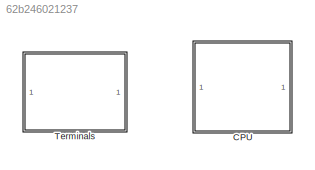
MODEL slx_62b246021237
KIND library
CONFIG AbsTol = auto
CONFIG EnableMultiTasking = off
CONFIG FixedStep = auto
CONFIG MaxStep = auto
CONFIG MinStep = auto
CONFIG RelTol = 1e-3
CONFIG SampleTimeConstraint = Unconstrained
CONFIG SolverName = VariableStepAuto
CONFIG StartTime = 0.0
CONFIG StopTime = 10.0
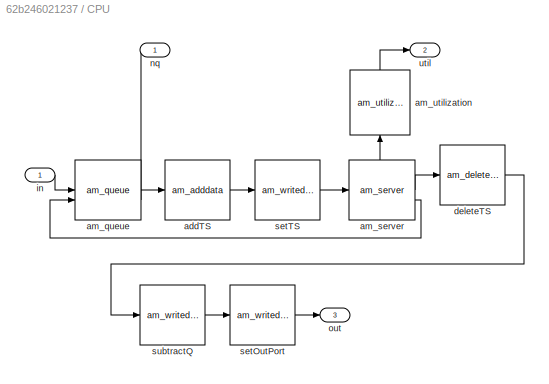
BLOCK [SubSystem] CPU
BLOCK [Reference] CPU/addTS  REF=StdLib/am_adddata
  SourceBlock = StdLib/am_adddata
  SourceProductName = Logistics
  SourceType = Adddata
BLOCK [Reference] CPU/am_queue  REF=StdLib/am_queue
  SourceBlock = StdLib/am_queue
  SourceType = Queue
BLOCK [Reference] CPU/am_server  REF=StdLib/am_server
  SourceBlock = StdLib/am_server
  SourceType = Server
BLOCK [Reference] CPU/am_utilization  REF=StdLib/am_utilization
  NameLocation = right
  SourceBlock = StdLib/am_utilization
  SourceProductName = Statistics
  SourceType = Utilization
BLOCK [Reference] CPU/deleteTS  REF=StdLib/am_deletedata
  SourceBlock = StdLib/am_deletedata
  SourceProductName = Logistics
  SourceType = Deletedata
BLOCK [Inport] CPU/in
BLOCK [Outport] CPU/nq
BLOCK [Outport] CPU/out
  Port = 3
BLOCK [Reference] CPU/setOutPort  REF=StdLib/am_writedata
  SourceBlock = StdLib/am_writedata
  SourceProductName = Logistics
  SourceType = Writedata
BLOCK [Reference] CPU/setTS  REF=StdLib/am_writedata
  SourceBlock = StdLib/am_writedata
  SourceProductName = Logistics
  SourceType = Writedata
BLOCK [Reference] CPU/subtractQ  REF=StdLib/am_writedata
  SourceBlock = StdLib/am_writedata
  SourceProductName = Logistics
  SourceType = Writedata
BLOCK [Outport] CPU/util
  Port = 2
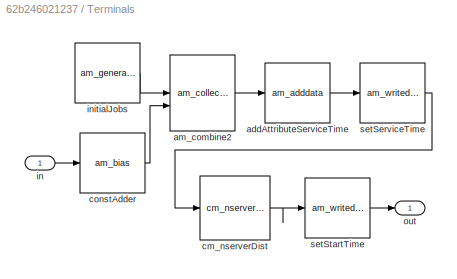
BLOCK [SubSystem] Terminals
BLOCK [Reference] Terminals/addAttributeServiceTime  REF=StdLib/am_adddata
  SourceBlock = StdLib/am_adddata
  SourceProductName = Logistics
  SourceType = Adddata
BLOCK [Reference] Terminals/am_combine2  REF=StdLib/am_collect2
  SourceBlock = StdLib/am_collect2
  SourceProductName = Routing
  SourceType = Collect2
BLOCK [Reference] Terminals/cm_nserverDist  REF=StdLib/cm_nserverDist
  SourceBlock = StdLib/cm_nserverDist
  SourceProductName = Logistics
  SourceType = ExpNServer
BLOCK [Reference] Terminals/constAdder  REF=StdLib/am_bias
  SourceBlock = StdLib/am_bias
  SourceProductName = Math Operations
  SourceType = Gain
BLOCK [Inport] Terminals/in
BLOCK [Reference] Terminals/initialJobs  REF=StdLib/am_generator
  SourceBlock = StdLib/am_generator
  SourceType = Generator
BLOCK [Outport] Terminals/out
BLOCK [Reference] Terminals/setServiceTime  REF=StdLib/am_writedata
  SourceBlock = StdLib/am_writedata
  SourceProductName = Logistics
  SourceType = Writedata
BLOCK [Reference] Terminals/setStartTime  REF=StdLib/am_writedata
  SourceBlock = StdLib/am_writedata
  SourceProductName = Logistics
  SourceType = Writedata
LINE CPU/addTS:1 -> CPU/setTS:1
LINE CPU/am_queue:1 -> CPU/addTS:1
LINE CPU/am_queue:2 -> CPU/nq:1
LINE CPU/am_server:1 -> CPU/deleteTS:1
LINE CPU/am_server:2 -> CPU/am_queue:2
LINE CPU/am_server:3 -> CPU/am_utilization:1
LINE CPU/am_utilization:1 -> CPU/util:1
LINE CPU/deleteTS:1 -> CPU/subtractQ:1
LINE CPU/in:1 -> CPU/am_queue:1
LINE CPU/setOutPort:1 -> CPU/out:1
LINE CPU/setTS:1 -> CPU/am_server:1
LINE CPU/subtractQ:1 -> CPU/setOutPort:1
LINE Terminals/addAttributeServiceTime:1 -> Terminals/setServiceTime:1
LINE Terminals/am_combine2:1 -> Terminals/addAttributeServiceTime:1
LINE Terminals/cm_nserverDist:1 -> Terminals/setStartTime:1
LINE Terminals/constAdder:1 -> Terminals/am_combine2:2
LINE Terminals/in:1 -> Terminals/constAdder:1
LINE Terminals/initialJobs:1 -> Terminals/am_combine2:1
LINE Terminals/setServiceTime:1 -> Terminals/cm_nserverDist:1
LINE Terminals/setStartTime:1 -> Terminals/out:1
